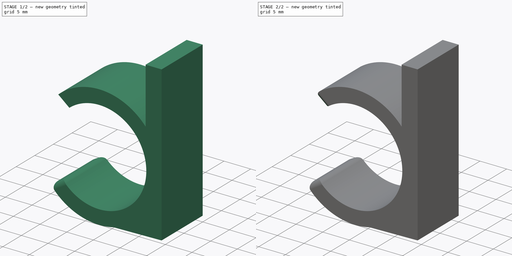
[diagram: build sequence overview — one tinted view per stage of 2, left to right]
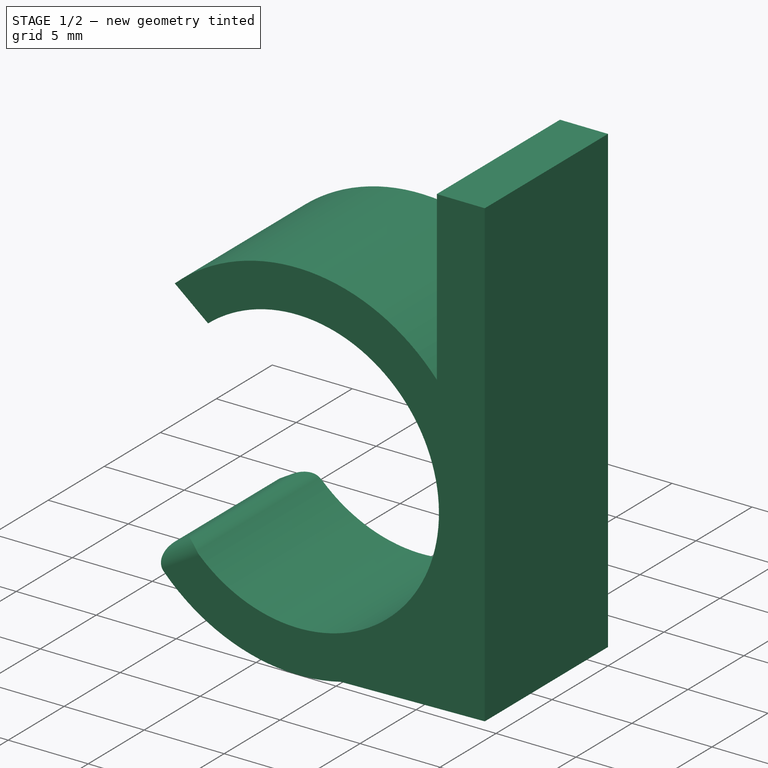
[diagram: stage 1 of 2 — iso view after this stage's code; geometry added in this stage tinted green]
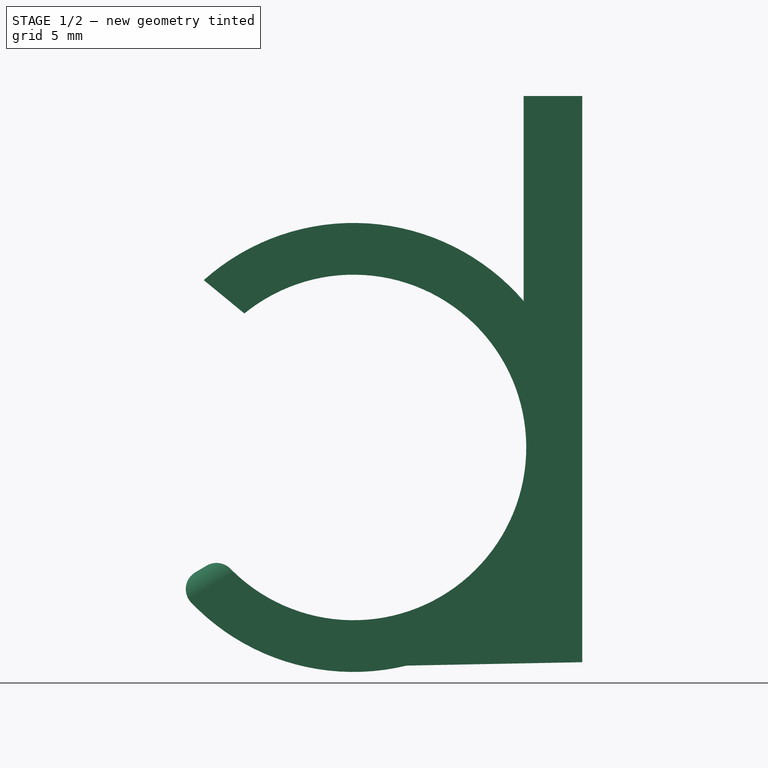
[diagram: stage 1 of 2 — front view after this stage's code; geometry added in this stage tinted green]
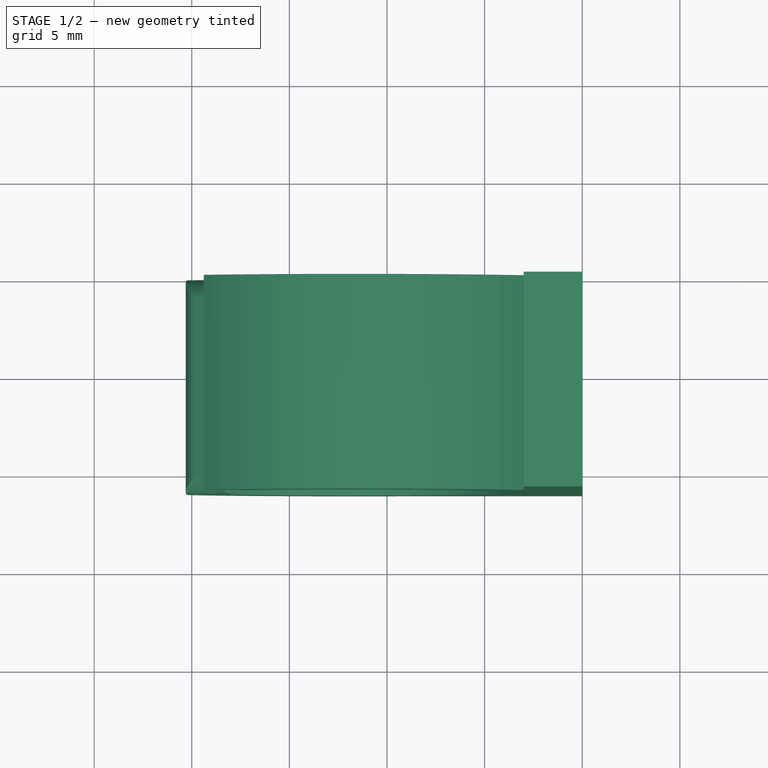
[diagram: stage 1 of 2 — top view after this stage's code; geometry added in this stage tinted green]
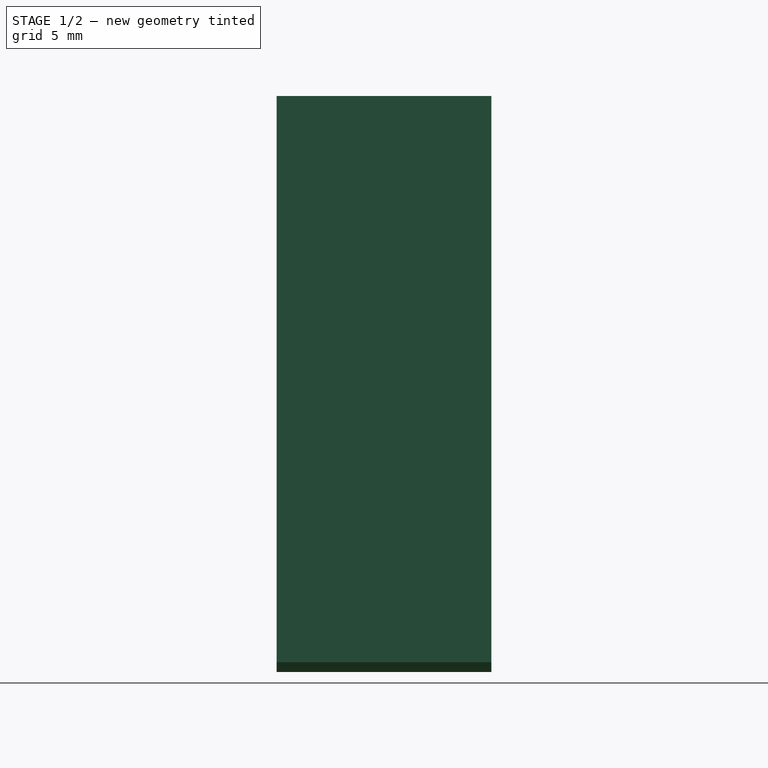
[diagram: stage 1 of 2 — right view after this stage's code; geometry added in this stage tinted green]
FCSTD DOCUMENT  (FreeCAD 1.0R39109 (Git))
Label: SteckerKlipp
License: All rights reserved
LicenseURL: http://en.wikipedia.org/wiki/All_rights_reserved
objects: PartDesign::Fillet×2, Sketcher::SketchObject×1, PartDesign::Pad×1, PartDesign::Body×1
note: 12 computed .brp shape members not serialized (recipe doc carries the construction recipe); baked Part::Feature solids carry a one-line shape summary decoded from their .brp

FEATURE [Sketcher::SketchObject] Sketch
  ArcFitTolerance = 1e-06
  AttachmentSupport = -> [XZ_Plane]
  FullyConstrained = true
  MakeInternals = false
  MapMode = 5
  Placement = pos=(0,0,0) rot=(1,0,0;1.5708rad)
  sketch-geometry (10):
    g0: LineSegment StartX=0 StartY=0 StartZ=0 EndX=0 EndY=25 EndZ=0
    g1: LineSegment StartX=0 StartY=25 StartZ=0 EndX=-3 EndY=25 EndZ=0
    g2: LineSegment StartX=-3 StartY=25 StartZ=0 EndX=-3 EndY=14.5 EndZ=0
    g3: ArcOfCircle CenterX=-11.7178 CenterY=7 CenterZ=0 NormalX=0 NormalY=0 NormalZ=1 AngleXU=0 Radius=8.85 StartAngle=3.8322 EndAngle=8.53739
    g4: ArcOfCircle CenterX=-11.7178 CenterY=7 CenterZ=0 NormalX=0 NormalY=0 NormalZ=1 AngleXU=0 Radius=11.5 StartAngle=0.710449 EndAngle=2.30073
    g5: LineSegment StartX=0 StartY=0 StartZ=0 EndX=2e-16 EndY=-4 EndZ=0
    g6: LineSegment StartX=-9 StartY=-4.17424 StartZ=0 EndX=2e-16 EndY=-4 EndZ=0
    g7: LineSegment StartX=-17.306 StartY=13.8625 StartZ=0 EndX=-19.3863 EndY=15.57 EndZ=0
    g8: LineSegment StartX=-18.5399 StartY=1.36251 StartZ=0 EndX=-20.8419 EndY=0 EndZ=0
    g9: ArcOfCircle CenterX=-11.7178 CenterY=7 CenterZ=0 NormalX=0 NormalY=0 NormalZ=1 AngleXU=0 Radius=11.5 StartAngle=3.79601 EndAngle=4.95098
  constraints (31):
    c: Coincident(g-1,g0)
    c: PointOnObject(g0,g-2)
    c: Coincident(g0,g1)
    c: Coincident(g1,g2)
    c: Vertical(g2)
    c: Coincident(g4,g3)
    c: Distance(g3,g1) = 18
    c: Horizontal(g1)
    c: Coincident(g5,g0)
    c: PointOnObject(g5,g-2)
    c: Coincident(g6,g5)
    c: DistanceY(g5,g5) = 4
    c: DistanceX(g6,g6) = 9
    c: Diameter(g3) = 17.7
    c: Diameter(g4) = 23
    c: DistanceX(g1,g1) = 3
    c: DistanceY(g0,g0) = 25
    c: DistanceY(g2,g2) = 10.5
    c: Coincident(g4,g2)
    c: Coincident(g9,g6)
    c: PointOnObject(g8,g9)
    c: Angle(g-1,g8) = 0.53442
    c: PointOnObject(g8,g-1)
    c: Angle(g7,g8) = 1.22173
    c: DistanceY(g8,g7) = 12.5
    c: Coincident(g3,g7)
    c: Coincident(g3,g8)
    c: Equal(g4,g9)
    c: Coincident(g4,g7)
    c: PointOnObject(g9,g8)
    c: Coincident(g4,g9)
FEATURE [PartDesign::Pad] Pad
  Direction = (0,-1,2e-16)
  Length = 11
  Length2 = 10
  Placement = pos=(0,0,0) rot=(1,0,0;1.5708rad)
  Profile = -> Sketch
  ReferenceAxis = -> Sketch [N_Axis]
  Suppressed = false
  Type = 0
FEATURE [PartDesign::Fillet] Fillet
  Base = -> Pad [Face1]
  BaseFeature = -> Pad
  Placement = pos=(0,0,0) rot=(1,0,0;1.5708rad)
  Radius = 1
  SupportTransform = false
  Suppressed = false
  UseAllEdges = false
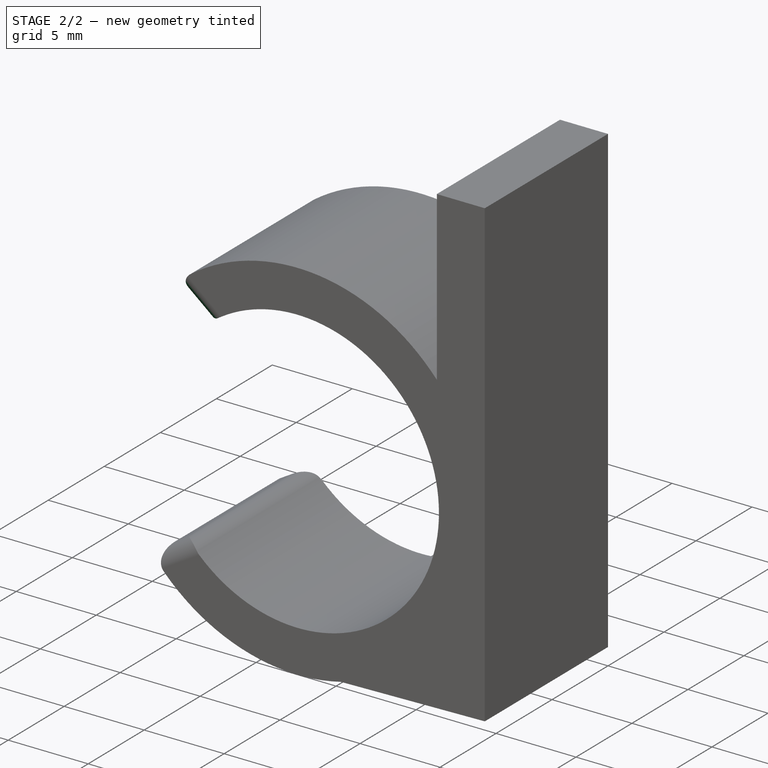
[diagram: stage 2 of 2 — iso view after this stage's code; geometry added in this stage tinted green]
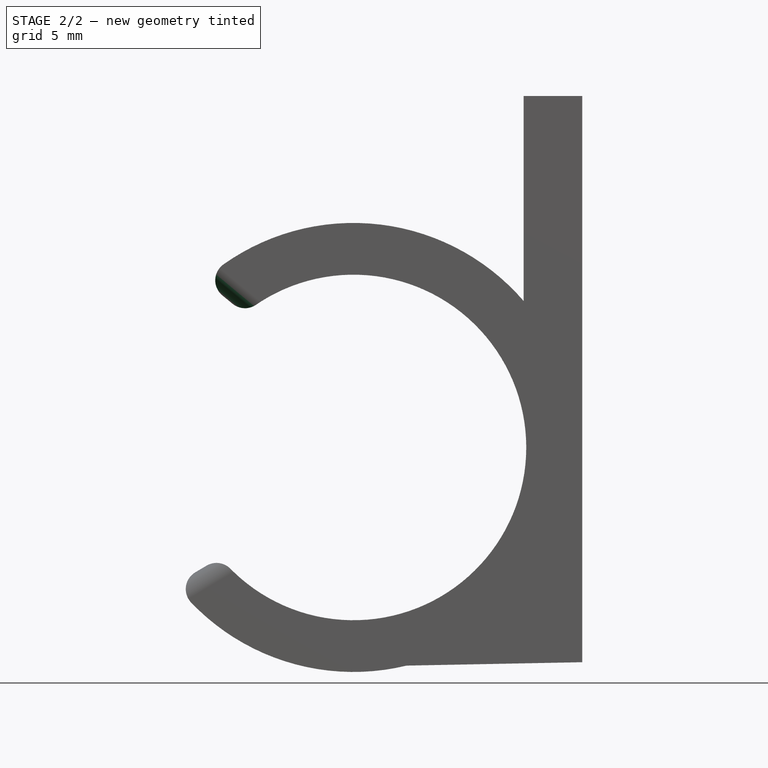
[diagram: stage 2 of 2 — front view after this stage's code; geometry added in this stage tinted green]
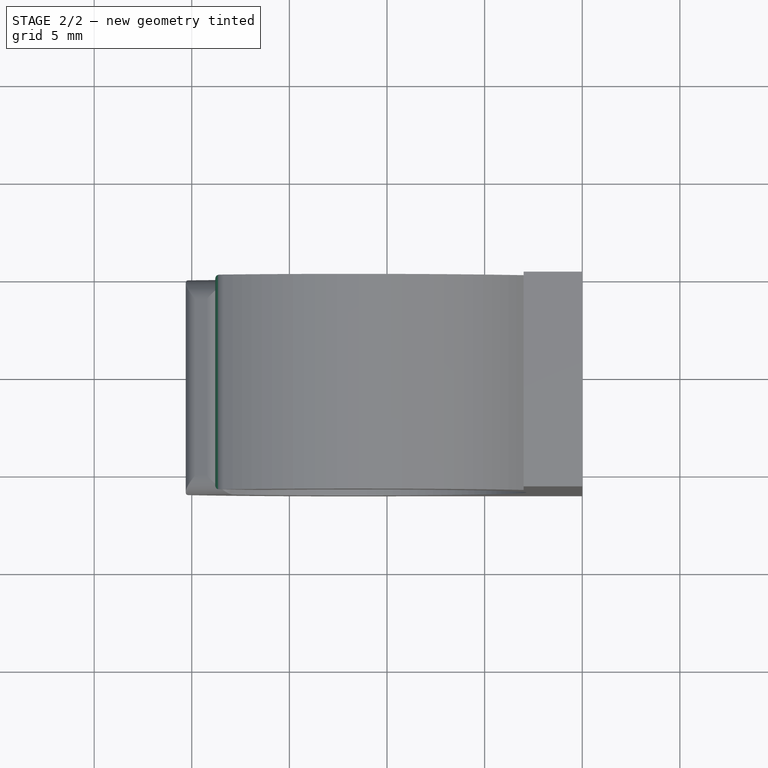
[diagram: stage 2 of 2 — top view after this stage's code; geometry added in this stage tinted green]
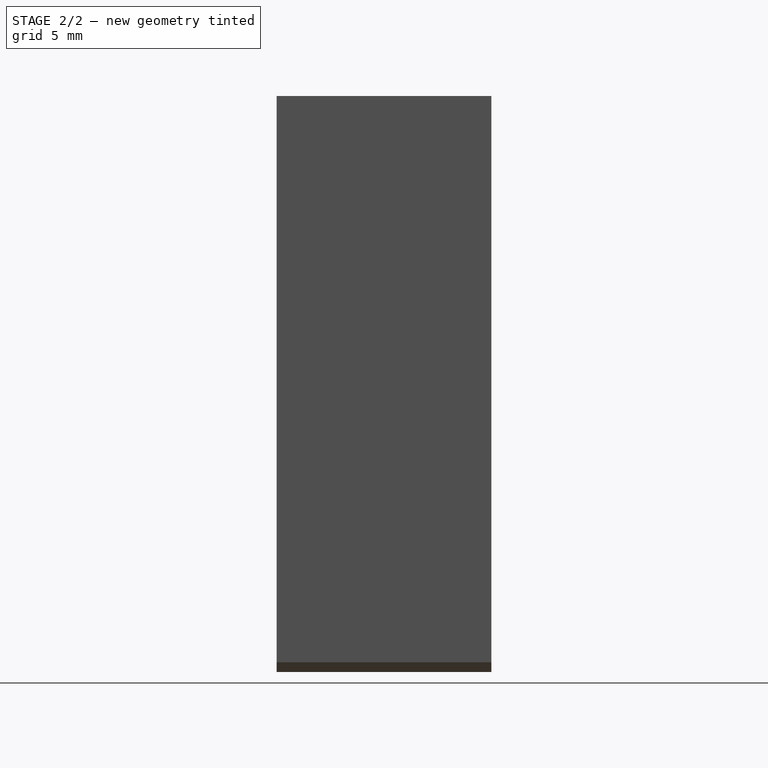
[diagram: stage 2 of 2 — right view after this stage's code; geometry added in this stage tinted green]
FEATURE [PartDesign::Fillet] Fillet001
  Base = -> Fillet [Face10]
  BaseFeature = -> Fillet
  Placement = pos=(0,0,0) rot=(1,0,0;1.5708rad)
  Radius = 1
  SupportTransform = false
  Suppressed = false
  UseAllEdges = false
FEATURE [PartDesign::Body] Body  label="Körper"
  AllowCompound = false
  Group = -> [Sketch,Pad,Fillet,Fillet001]
  Origin = -> Origin
  Tip = -> Fillet001
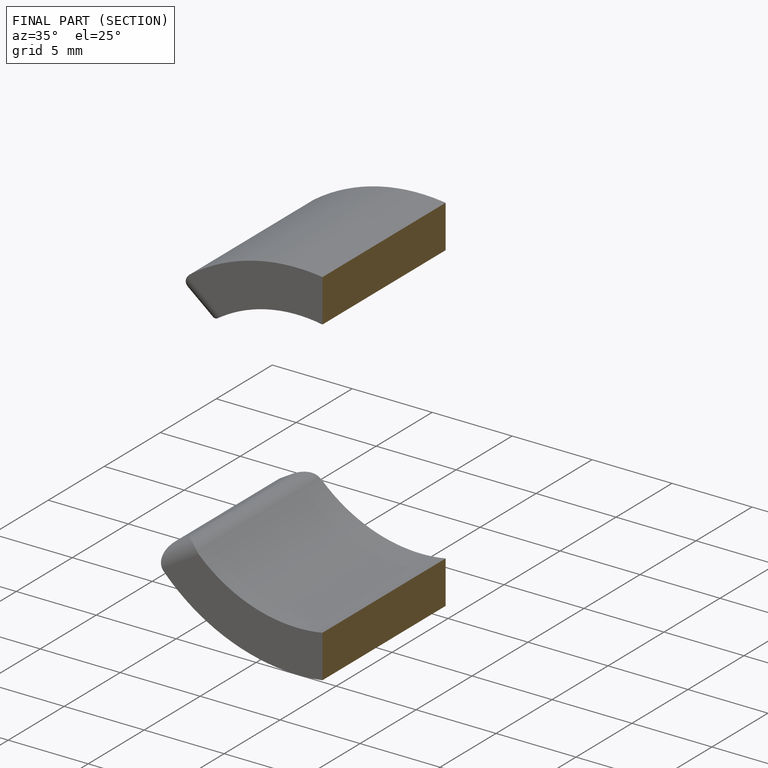
[diagram: finished part — half-section view (interior)]
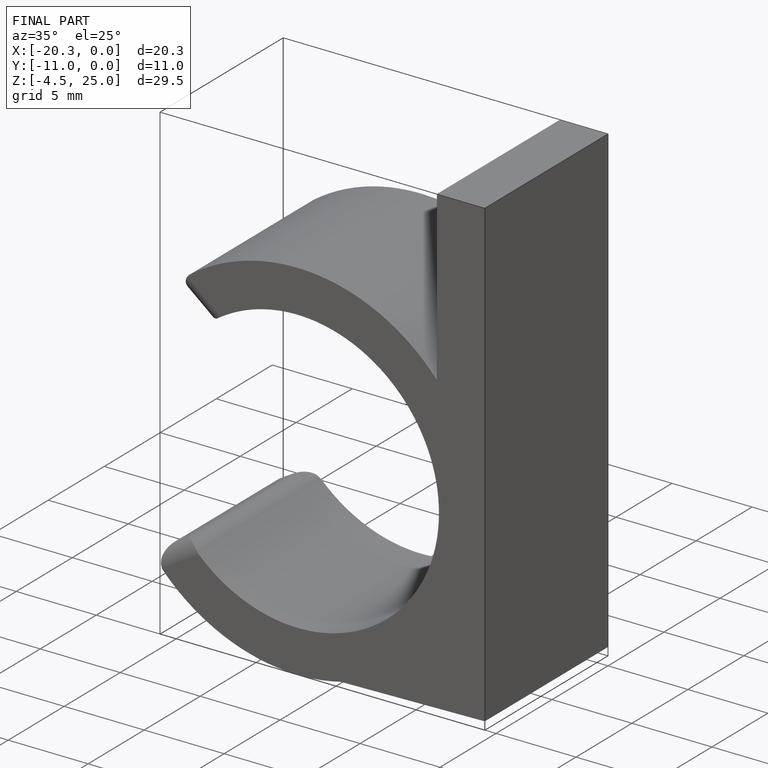
[diagram: finished part — iso view with bounding-box wireframe]
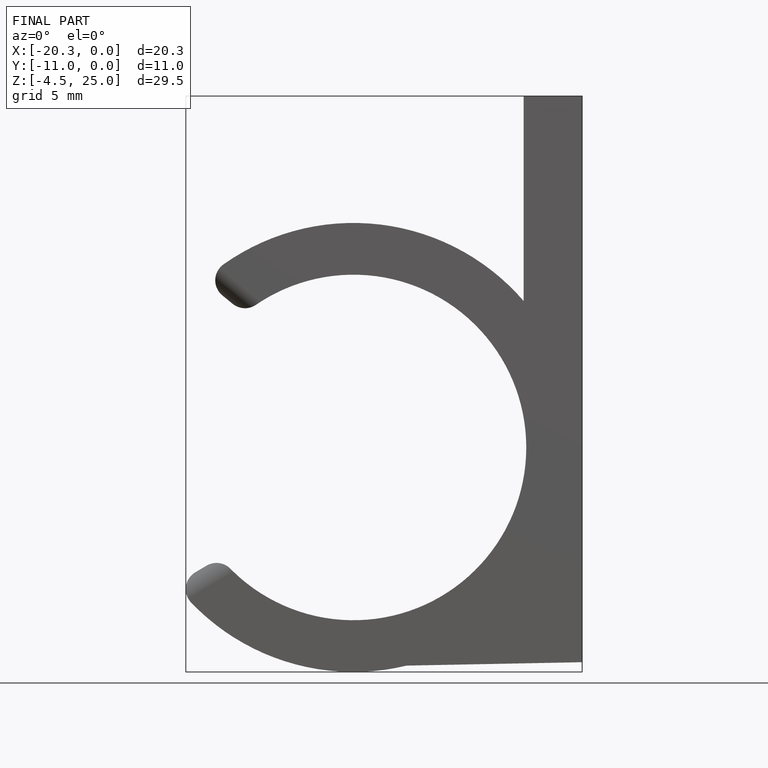
[diagram: finished part — front view with bounding-box wireframe]
